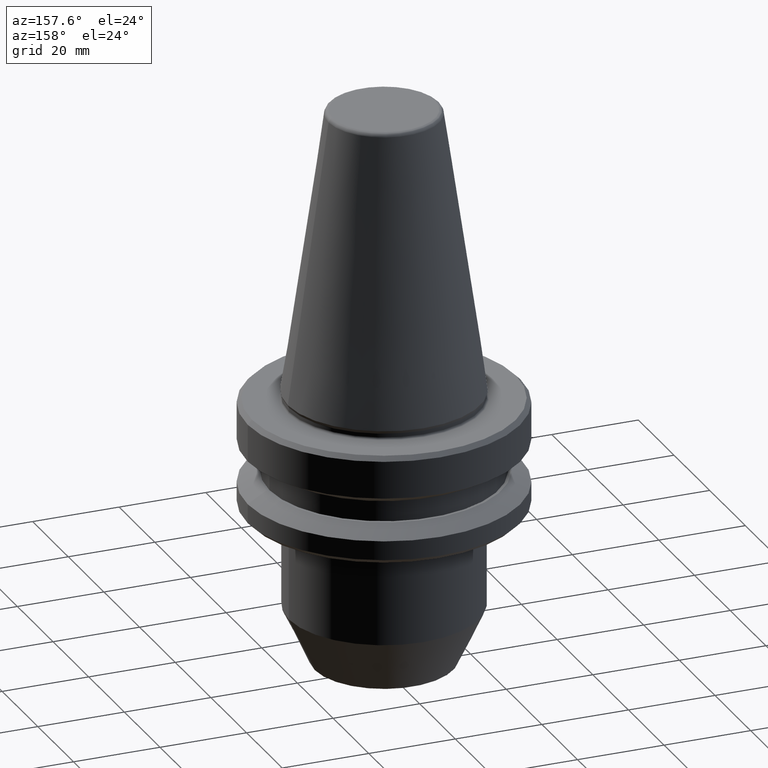
[diagram: clean part render]
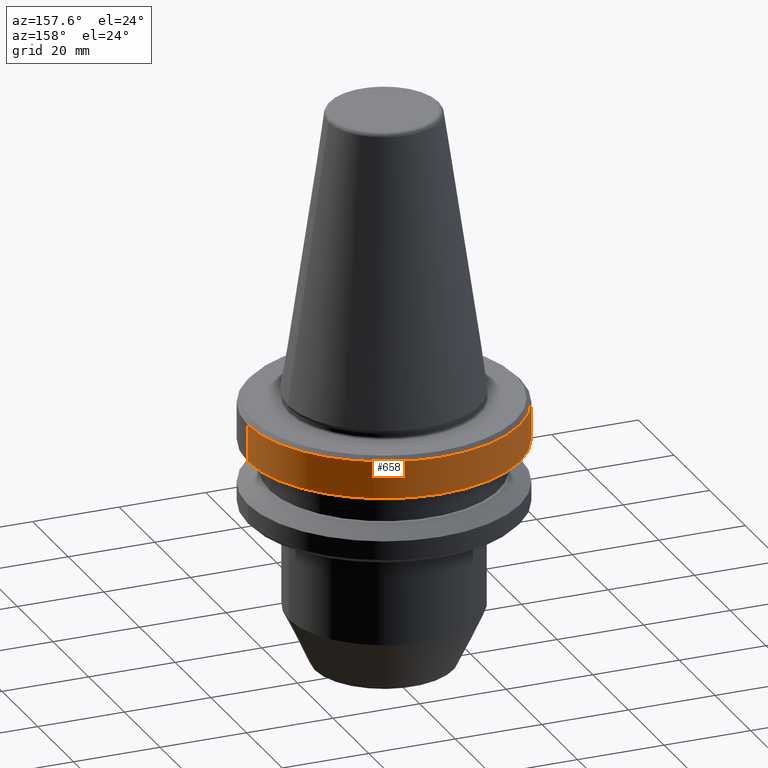
[diagram: same view with one face highlighted and labeled with its STEP entity id]
A machine part, auxiliary view. The second image highlights one B-rep face of the part: STEP entity #658.
In plain terms, the highlighted cylindrical surface (partial cylindrical patch) has radius 31.5 mm, axis along (-0, -0, 1).
Its self-contained STEP definition (entity closure, byte-faithful):
#9 = DIRECTION ( 'NONE',  ( -0.0000000000000000000, -0.0000000000000000000, 1.000000000000000000 ) ) ;
#10 = EDGE_LOOP ( 'NONE', ( #90, #641, #334, #752 ) ) ;
#26 = DIRECTION ( 'NONE',  ( -0.0000000000000000000, -0.0000000000000000000, 1.000000000000000000 ) ) ;
#59 = DIRECTION ( 'NONE',  ( -0.0000000000000000000, -0.0000000000000000000, 1.000000000000000000 ) ) ;
#63 = VERTEX_POINT ( 'NONE', #559 ) ;
#90 = ORIENTED_EDGE ( 'NONE', *, *, #970, .T. ) ;
#106 = VECTOR ( 'NONE', #26, 1000.000000000000000 ) ;
#118 = FACE_OUTER_BOUND ( 'NONE', #10, .T. ) ;
#145 = AXIS2_PLACEMENT_3D ( 'NONE', #563, #893, #642 ) ;
#186 = CARTESIAN_POINT ( 'NONE',  ( 0.0000000000000000000, 0.0000000000000000000, -2.311286788340083400 ) ) ;
#191 = VERTEX_POINT ( 'NONE', #218 ) ;
#210 = AXIS2_PLACEMENT_3D ( 'NONE', #186, #59, #788 ) ;
#215 = DIRECTION ( 'NONE',  ( -0.0000000000000000000, -0.0000000000000000000, 1.000000000000000000 ) ) ;
#218 = CARTESIAN_POINT ( 'NONE',  ( 31.49999999999986100, 0.0000000000000000000, -2.311286788340083400 ) ) ;
#255 = CARTESIAN_POINT ( 'NONE',  ( -31.49999999999986100, 3.857637417314145300E-015, 82.74845858742440900 ) ) ;
#318 = AXIS2_PLACEMENT_3D ( 'NONE', #704, #215, #772 ) ;
#334 = ORIENTED_EDGE ( 'NONE', *, *, #580, .F. ) ;
#353 = CARTESIAN_POINT ( 'NONE',  ( 31.49999999999986100, 0.0000000000000000000, 82.74845858742440900 ) ) ;
#366 = VERTEX_POINT ( 'NONE', #477 ) ;
#391 = VECTOR ( 'NONE', #9, 1000.000000000000000 ) ;
#477 = CARTESIAN_POINT ( 'NONE',  ( -31.49999999999986100, 3.857637417314145300E-015, -2.311286788340083400 ) ) ;
#527 = CARTESIAN_POINT ( 'NONE',  ( -31.49999999999986100, 3.857637417314145300E-015, -10.91114478202370800 ) ) ;
#559 = CARTESIAN_POINT ( 'NONE',  ( 31.49999999999986100, 0.0000000000000000000, -10.91114478202370800 ) ) ;
#563 = CARTESIAN_POINT ( 'NONE',  ( 0.0000000000000000000, 0.0000000000000000000, 82.74845858742440900 ) ) ;
#580 = EDGE_CURVE ( 'NONE', #191, #366, #663, .T. ) ;
#641 = ORIENTED_EDGE ( 'NONE', *, *, #871, .T. ) ;
#642 = DIRECTION ( 'NONE',  ( 1.000000000000000000, 0.0000000000000000000, 0.0000000000000000000 ) ) ;
#653 = LINE ( 'NONE', #353, #391 ) ;
#658 = ADVANCED_FACE ( 'NONE', ( #118 ), #930, .T. ) ;
#663 = CIRCLE ( 'NONE', #210, 31.49999999999986100 ) ;
#704 = CARTESIAN_POINT ( 'NONE',  ( 0.0000000000000000000, 0.0000000000000000000, -10.91114478202370800 ) ) ;
#752 = ORIENTED_EDGE ( 'NONE', *, *, #839, .F. ) ;
#772 = DIRECTION ( 'NONE',  ( 1.000000000000000000, 0.0000000000000000000, 0.0000000000000000000 ) ) ;
#780 = CIRCLE ( 'NONE', #318, 31.49999999999986100 ) ;
#788 = DIRECTION ( 'NONE',  ( 1.000000000000000000, 0.0000000000000000000, 0.0000000000000000000 ) ) ;
#800 = VERTEX_POINT ( 'NONE', #527 ) ;
#839 = EDGE_CURVE ( 'NONE', #63, #191, #653, .T. ) ;
#871 = EDGE_CURVE ( 'NONE', #800, #366, #965, .T. ) ;
#893 = DIRECTION ( 'NONE',  ( -0.0000000000000000000, -0.0000000000000000000, 1.000000000000000000 ) ) ;
#930 = CYLINDRICAL_SURFACE ( 'NONE', #145, 31.49999999999986100 ) ;
#965 = LINE ( 'NONE', #255, #106 ) ;
#970 = EDGE_CURVE ( 'NONE', #63, #800, #780, .T. ) ;